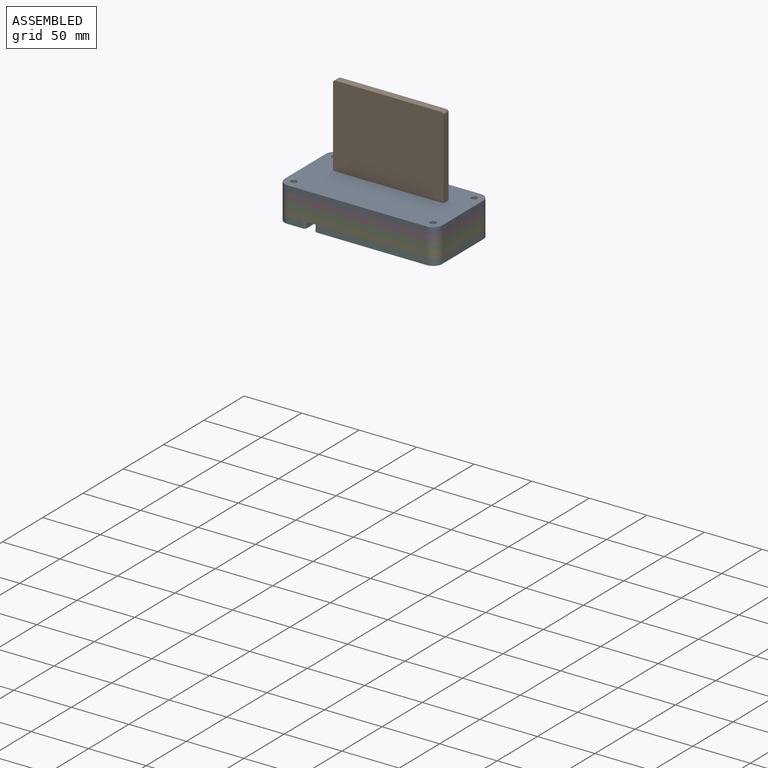
[diagram: assembled view]
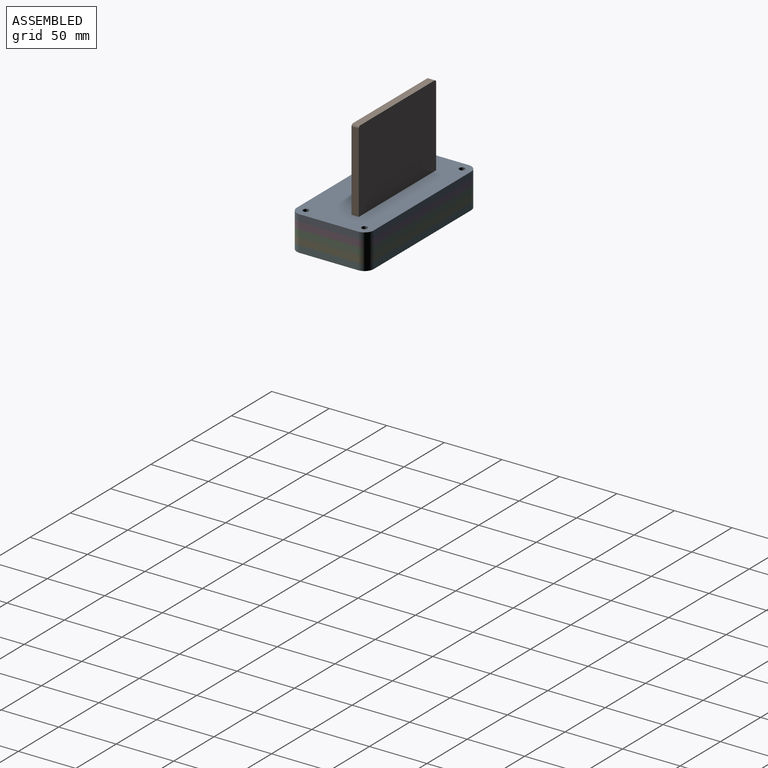
[diagram: assembled view, second angle]
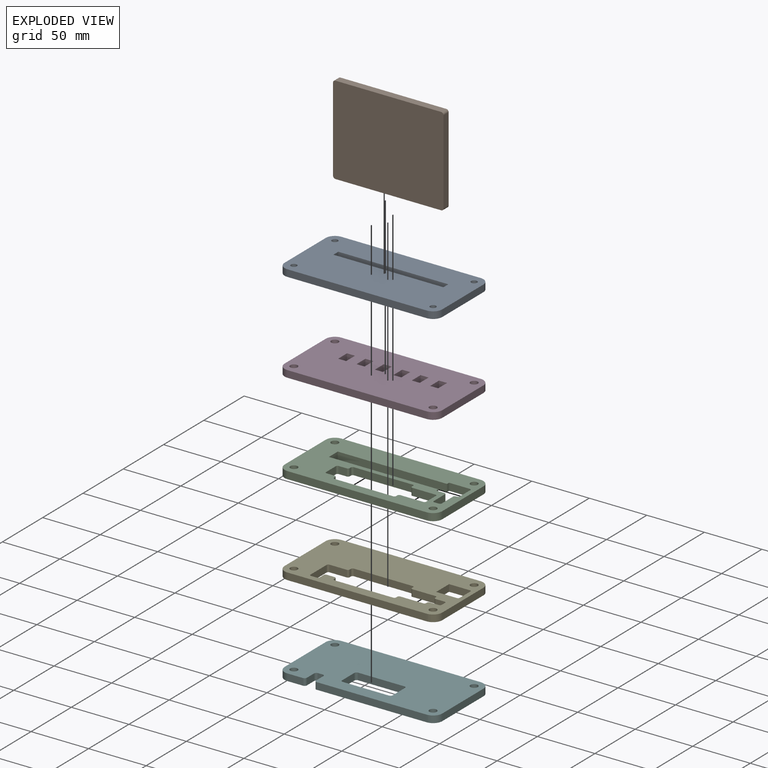
[diagram: exploded view]
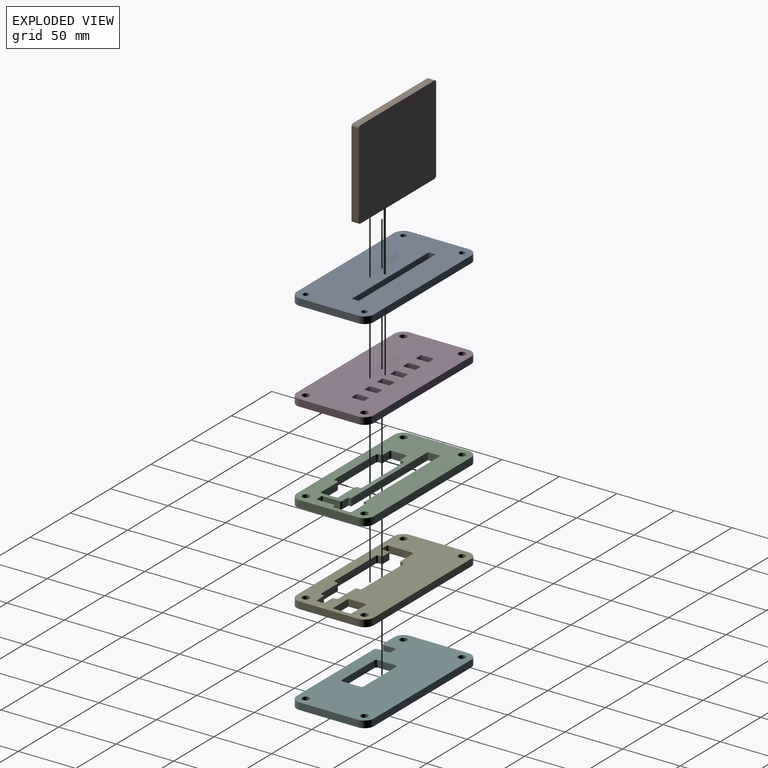
[diagram: exploded view, second angle]
ASSEMBLY  parts=6 mates=5
PART A: 18 faces, bbox 137x66.9x6 mm
  f0: plane 137x66.89mm, normal (0,0,1), area 8444mm2, adj f2,f3,f4,f5,f6,f7,f8,f9
  f1: plane 137x66.89mm, normal (0,0,-1), area 8444mm2, adj f2,f3,f4,f5,f6,f7,f8,f9
  f2: cylinder r=8mm len=8mm, axis (0,0,-1), area 75.4mm2, adj f0,f1,f3,f12
  f3: plane 121x6mm, normal (0,-1,0), area 726mm2, adj f0,f1,f2,f4
  f4: cylinder r=8mm len=8mm, axis (0,0,-1), area 75.4mm2, adj f0,f1,f3,f5
  f5: plane 50.89x6mm, normal (1,0,0), area 305.3mm2, adj f0,f1,f4,f6
  f6: cylinder r=8mm len=8mm, axis (0,0,-1), area 75.4mm2, adj f0,f1,f5,f7
  f7: plane 121x6mm, normal (0,1,0), area 726mm2, adj f0,f1,f6,f8
  f8: cylinder r=8mm len=8mm, axis (0,0,-1), area 75.4mm2, adj f0,f1,f7,f12
  f9: cylinder r=2.55mm len=6mm, axis (0,0,-1), area 96.2mm2, adj f0,f1
  f10: cylinder r=2.55mm len=6mm, axis (0,0,-1), area 96.2mm2, adj f0,f1
  f11: cylinder r=2.55mm len=6mm, axis (0,0,-1), area 96.2mm2, adj f0,f1
  f12: plane 50.89x6mm, normal (-1,0,0), area 305.3mm2, adj f0,f1,f2,f8
  f13: cylinder r=2.55mm len=6mm, axis (0,0,-1), area 96.2mm2, adj f0,f1
  f14: plane 6.1x6mm, normal (1,0,0), area 36.6mm2, adj f0,f1,f15,f16
  f15: plane 95.6x6mm, normal (0,1,0), area 573.6mm2, adj f0,f1,f14,f17
  f16: plane 95.6x6mm, normal (0,-1,0), area 573.6mm2, adj f0,f1,f14,f17
  f17: plane 6.1x6mm, normal (-1,0,0), area 36.6mm2, adj f0,f1,f15,f16
PART B: 10 faces, bbox 96x77.3x6.4 mm
  f0: plane 92x6.35mm, normal (0,1,0), area 584.2mm2, adj f4,f5,f6,f9
  f1: plane 73.25x6.35mm, normal (-1,0,0), area 465.1mm2, adj f4,f5,f6,f7
  f2: plane 92x6.35mm, normal (0,-1,0), area 584.2mm2, adj f4,f5,f7,f8
  f3: plane 73.25x6.35mm, normal (1,0,0), area 465.1mm2, adj f4,f5,f8,f9
  f4: plane 96x77.25mm, normal (0,0,1), area 7412.6mm2, adj f0,f1,f2,f3,f6,f7,f8,f9
  f5: plane 96x77.25mm, normal (0,0,-1), area 7412.6mm2, adj f0,f1,f2,f3,f6,f7,f8,f9
  f6: cylinder r=2mm len=6.35mm, axis (0,0,1), area 19.9mm2, adj f0,f1,f4,f5
  f7: cylinder r=2mm len=6.35mm, axis (0,0,-1), area 19.9mm2, adj f1,f2,f4,f5
  f8: cylinder r=2mm len=6.35mm, axis (0,0,1), area 19.9mm2, adj f2,f3,f4,f5
  f9: cylinder r=2mm len=6.35mm, axis (0,0,-1), area 19.9mm2, adj f0,f3,f4,f5
PART C: 56 faces, bbox 137x66.9x6.4 mm
  f0: plane 137x66.89mm, normal (0,0,-1), area 5718.3mm2, adj f1,f2,f3,f4,f5,f6,f7,f8
  f1: cylinder r=8mm len=8mm, axis (0,0,-1), area 79.8mm2, adj f0,f2,f11,f13
  f2: plane 121x6.35mm, normal (0,-1,0), area 768.3mm2, adj f0,f1,f3,f13
  f3: cylinder r=8mm len=8mm, axis (0,0,-1), area 79.8mm2, adj f0,f2,f4,f13
  f4: plane 50.89x6.35mm, normal (1,0,0), area 323.2mm2, adj f0,f3,f5,f13
  f5: cylinder r=8mm len=8mm, axis (0,0,-1), area 79.8mm2, adj f0,f4,f6,f13
  f6: plane 121x6.35mm, normal (0,1,0), area 768.3mm2, adj f0,f5,f7,f13
  f7: cylinder r=8mm len=8mm, axis (0,0,-1), area 79.8mm2, adj f0,f6,f11,f13
  f8: cylinder r=3.17mm len=6.35mm, axis (0,0,-1), area 126.7mm2, adj f0,f13
  f9: cylinder r=3.17mm len=6.35mm, axis (0,0,-1), area 126.7mm2, adj f0,f13
  f10: cylinder r=3.17mm len=6.35mm, axis (0,0,-1), area 126.7mm2, adj f0,f13
  f11: plane 50.89x6.35mm, normal (-1,0,0), area 323.2mm2, adj f0,f1,f7,f13
  f12: cylinder r=3.17mm len=6.35mm, axis (0,0,-1), area 126.7mm2, adj f0,f13
  f13: plane 137x66.89mm, normal (0,0,1), area 5718.3mm2, adj f1,f2,f3,f4,f5,f6,f7,f8
  f14: plane 7.25x6.35mm, normal (0,1,0), area 46mm2, adj f0,f13,f18,f53
  f15: plane 95x6.35mm, normal (0,-1,0), area 603.2mm2, adj f0,f13,f16,f22
  f16: plane 11x6.35mm, normal (1,0,0), area 69.8mm2, adj f0,f13,f15,f17
  f17: plane 95x6.35mm, normal (0,1,0), area 603.2mm2, adj f0,f13,f16,f18
  f18: plane 6.35x2.5mm, normal (1,0,0), area 15.9mm2, adj f0,f13,f14,f17
  f19: plane 6.35x0.75mm, normal (0,1,0), area 4.8mm2, adj f0,f13,f52,f54
  f20: plane 13x6.35mm, normal (-1,0,0), area 82.5mm2, adj f0,f13,f54,f55
  f21: plane 18x6.35mm, normal (0,-1,0), area 114.3mm2, adj f0,f13,f22,f55
  f22: plane 6.35x2.5mm, normal (1,0,0), area 15.9mm2, adj f0,f13,f15,f21
  f23: plane 6.35x4mm, normal (0,1,0), area 25.4mm2, adj f0,f13,f50,f51
  f24: plane 14x6.35mm, normal (-1,0,0), area 88.9mm2, adj f0,f13,f51,f52
  f25: plane 14x6.35mm, normal (1,0,0), area 88.9mm2, adj f0,f13,f50,f53
  f26: plane 6.35x1.5mm, normal (-1,0,0), area 9.5mm2, adj f0,f13,f38,f39
  f27: plane 51x6.35mm, normal (0,-1,0), area 323.8mm2, adj f0,f13,f39,f40
  f28: plane 6.35x1.5mm, normal (1,0,0), area 9.5mm2, adj f0,f13,f40,f41
  f29: plane 7x6.35mm, normal (0,-1,0), area 44.4mm2, adj f0,f13,f41,f42
  f30: plane 12x6.35mm, normal (1,0,0), area 76.2mm2, adj f0,f13,f42,f43
  f31: plane 7x6.35mm, normal (0,1,0), area 44.4mm2, adj f0,f13,f43,f44
  f32: plane 6.35x1.5mm, normal (1,0,0), area 9.5mm2, adj f0,f13,f44,f45
  f33: plane 51x6.35mm, normal (0,1,0), area 323.8mm2, adj f0,f13,f45,f46
  f34: plane 6.35x1.5mm, normal (-1,0,0), area 9.5mm2, adj f0,f13,f46,f47
  f35: plane 20x6.35mm, normal (0,1,0), area 127mm2, adj f0,f13,f47,f48
  f36: plane 20x6.35mm, normal (0,-1,0), area 127mm2, adj f0,f13,f38,f49
  f37: plane 12x6.35mm, normal (-1,0,0), area 76.2mm2, adj f0,f13,f48,f49
  f38: cylinder r=1.5mm len=6.35mm, axis (0,0,-1), area 15mm2, adj f0,f13,f26,f36
  f39: cylinder r=1.5mm len=6.35mm, axis (0,0,1), area 15mm2, adj f0,f13,f26,f27
  f40: cylinder r=1.5mm len=6.35mm, axis (0,0,-1), area 15mm2, adj f0,f13,f27,f28
  f41: cylinder r=1.5mm len=6.35mm, axis (0,0,1), area 15mm2, adj f0,f13,f28,f29
  f42: cylinder r=1.5mm len=6.35mm, axis (0,0,-1), area 15mm2, adj f0,f13,f29,f30
  f43: cylinder r=1.5mm len=6.35mm, axis (0,0,1), area 15mm2, adj f0,f13,f30,f31
  f44: cylinder r=1.5mm len=6.35mm, axis (0,0,-1), area 15mm2, adj f0,f13,f31,f32
  f45: cylinder r=1.5mm len=6.35mm, axis (0,0,1), area 15mm2, adj f0,f13,f32,f33
  f46: cylinder r=1.5mm len=6.35mm, axis (0,0,-1), area 15mm2, adj f0,f13,f33,f34
  f47: cylinder r=1.5mm len=6.35mm, axis (0,0,1), area 15mm2, adj f0,f13,f34,f35
  f48: cylinder r=1.5mm len=6.35mm, axis (0,0,-1), area 15mm2, adj f0,f13,f35,f37
  f49: cylinder r=1.5mm len=6.35mm, axis (0,0,1), area 15mm2, adj f0,f13,f36,f37
  f50: cylinder r=1.5mm len=6.35mm, axis (0,0,1), area 15mm2, adj f0,f13,f23,f25
  f51: cylinder r=1.5mm len=6.35mm, axis (0,0,-1), area 15mm2, adj f0,f13,f23,f24
  f52: cylinder r=1.5mm len=6.35mm, axis (0,0,1), area 15mm2, adj f0,f13,f19,f24
  f53: cylinder r=1.5mm len=6.35mm, axis (0,0,-1), area 15mm2, adj f0,f13,f14,f25
  f54: cylinder r=1.5mm len=6.35mm, axis (0,0,-1), area 15mm2, adj f0,f13,f19,f20
  f55: cylinder r=1.5mm len=6.35mm, axis (0,0,1), area 15mm2, adj f0,f13,f20,f21
PART D: 38 faces, bbox 137x66.9x6 mm
  f0: plane 137x66.89mm, normal (0,0,1), area 8520.4mm2, adj f2,f3,f4,f5,f6,f7,f8,f9
  f1: plane 137x66.89mm, normal (0,0,-1), area 8520.4mm2, adj f2,f3,f4,f5,f6,f7,f8,f9
  f2: cylinder r=8mm len=8mm, axis (0,0,-1), area 75.4mm2, adj f0,f1,f3,f12
  f3: plane 121x6mm, normal (0,-1,0), area 726mm2, adj f0,f1,f2,f4
  f4: cylinder r=8mm len=8mm, axis (0,0,-1), area 75.4mm2, adj f0,f1,f3,f5
  f5: plane 50.89x6mm, normal (1,0,0), area 305.3mm2, adj f0,f1,f4,f6
  f6: cylinder r=8mm len=8mm, axis (0,0,-1), area 75.4mm2, adj f0,f1,f5,f7
  f7: plane 121x6mm, normal (0,1,0), area 726mm2, adj f0,f1,f6,f8
  f8: cylinder r=8mm len=8mm, axis (0,0,-1), area 75.4mm2, adj f0,f1,f7,f12
  f9: cylinder r=3.17mm len=6.35mm, axis (0,0,-1), area 119.7mm2, adj f0,f1
  f10: cylinder r=3.17mm len=6.35mm, axis (0,0,-1), area 119.7mm2, adj f0,f1
  f11: cylinder r=3.17mm len=6.35mm, axis (0,0,-1), area 119.7mm2, adj f0,f1
  f12: plane 50.89x6mm, normal (-1,0,0), area 305.3mm2, adj f0,f1,f2,f8
  f13: cylinder r=3.17mm len=6.35mm, axis (0,0,-1), area 119.7mm2, adj f0,f1
  f14: plane 7x6mm, normal (0,1,0), area 42mm2, adj f0,f1,f15,f17
  f15: plane 11x6mm, normal (-1,0,0), area 66mm2, adj f0,f1,f14,f16
  f16: plane 7x6mm, normal (0,-1,0), area 42mm2, adj f0,f1,f15,f17
  f17: plane 11x6mm, normal (1,0,0), area 66mm2, adj f0,f1,f14,f16
  f18: plane 11x6mm, normal (1,0,0), area 66mm2, adj f0,f1,f19,f20
  f19: plane 7x6mm, normal (0,1,0), area 42mm2, adj f0,f1,f18,f21
  f20: plane 7x6mm, normal (0,-1,0), area 42mm2, adj f0,f1,f18,f21
  f21: plane 11x6mm, normal (-1,0,0), area 66mm2, adj f0,f1,f19,f20
  f22: plane 11x6mm, normal (1,0,0), area 66mm2, adj f0,f1,f23,f24
  f23: plane 7x6mm, normal (0,1,0), area 42mm2, adj f0,f1,f22,f25
  f24: plane 7x6mm, normal (0,-1,0), area 42mm2, adj f0,f1,f22,f25
  f25: plane 11x6mm, normal (-1,0,0), area 66mm2, adj f0,f1,f23,f24
  f26: plane 11x6mm, normal (1,0,0), area 66mm2, adj f0,f1,f27,f28
  f27: plane 7x6mm, normal (0,1,0), area 42mm2, adj f0,f1,f26,f29
  f28: plane 7x6mm, normal (0,-1,0), area 42mm2, adj f0,f1,f26,f29
  f29: plane 11x6mm, normal (-1,0,0), area 66mm2, adj f0,f1,f27,f28
  f30: plane 11x6mm, normal (1,0,0), area 66mm2, adj f0,f1,f31,f32
  f31: plane 7x6mm, normal (0,1,0), area 42mm2, adj f0,f1,f30,f33
  f32: plane 7x6mm, normal (0,-1,0), area 42mm2, adj f0,f1,f30,f33
  f33: plane 11x6mm, normal (-1,0,0), area 66mm2, adj f0,f1,f31,f32
  f34: plane 11x6mm, normal (1,0,0), area 66mm2, adj f0,f1,f35,f36
  f35: plane 7x6mm, normal (0,1,0), area 42mm2, adj f0,f1,f34,f37
  f36: plane 7x6mm, normal (0,-1,0), area 42mm2, adj f0,f1,f34,f37
  f37: plane 11x6mm, normal (-1,0,0), area 66mm2, adj f0,f1,f35,f36
PART E: 56 faces, bbox 137x66.9x6 mm
  f0: plane 137x66.89mm, normal (0,0,1), area 6623mm2, adj f2,f3,f4,f5,f6,f7,f8,f9
  f1: plane 137x66.89mm, normal (0,0,-1), area 6623mm2, adj f2,f3,f4,f5,f6,f7,f8,f9
  f2: cylinder r=8mm len=8mm, axis (0,0,-1), area 75.4mm2, adj f0,f1,f3,f12
  f3: plane 121x6mm, normal (0,-1,0), area 726mm2, adj f0,f1,f2,f4
  f4: cylinder r=8mm len=8mm, axis (0,0,-1), area 75.4mm2, adj f0,f1,f3,f5
  f5: plane 50.89x6mm, normal (1,0,0), area 305.3mm2, adj f0,f1,f4,f6
  f6: cylinder r=8mm len=8mm, axis (0,0,-1), area 75.4mm2, adj f0,f1,f5,f7
  f7: plane 121x6mm, normal (0,1,0), area 726mm2, adj f0,f1,f6,f8
  f8: cylinder r=8mm len=8mm, axis (0,0,-1), area 75.4mm2, adj f0,f1,f7,f12
  f9: cylinder r=3.17mm len=6.35mm, axis (0,0,-1), area 119.7mm2, adj f0,f1
  f10: cylinder r=3.17mm len=6.35mm, axis (0,0,-1), area 119.7mm2, adj f0,f1
  f11: cylinder r=3.17mm len=6.35mm, axis (0,0,-1), area 119.7mm2, adj f0,f1
  f12: plane 50.89x6mm, normal (-1,0,0), area 305.3mm2, adj f0,f1,f2,f8
  f13: cylinder r=3.17mm len=6.35mm, axis (0,0,-1), area 119.7mm2, adj f0,f1
  f14: plane 6x1.5mm, normal (-1,0,0), area 9mm2, adj f0,f1,f36,f37
  f15: plane 51x6mm, normal (0,-1,0), area 306mm2, adj f0,f1,f37,f38
  f16: plane 6x1.5mm, normal (1,0,0), area 9mm2, adj f0,f1,f38,f39
  f17: plane 15x6mm, normal (0,-1,0), area 90mm2, adj f0,f1,f39,f40
  f18: plane 20x6mm, normal (1,0,0), area 120mm2, adj f0,f1,f40,f41
  f19: plane 6x5mm, normal (0,1,0), area 30mm2, adj f0,f1,f41,f42
  f20: plane 6x5mm, normal (-1,0,0), area 30mm2, adj f0,f1,f42,f43
  f21: plane 7x6mm, normal (0,1,0), area 42mm2, adj f0,f1,f43,f44
  f22: plane 6x1.5mm, normal (1,0,0), area 9mm2, adj f0,f1,f44,f45
  f23: plane 51x6mm, normal (0,1,0), area 306mm2, adj f0,f1,f45,f46
  f24: plane 6x1.5mm, normal (-1,0,0), area 9mm2, adj f0,f1,f46,f47
  f25: plane 20x6mm, normal (0,1,0), area 120mm2, adj f0,f1,f47,f48
  f26: plane 6x1mm, normal (-1,0,0), area 6mm2, adj f0,f1,f48,f49
  f27: plane 7.75x6mm, normal (0,1,0), area 46.5mm2, adj f0,f1,f49,f50
  f28: plane 6x4mm, normal (-1,0,0), area 24mm2, adj f0,f1,f50,f51
  f29: plane 7.75x6mm, normal (0,-1,0), area 46.5mm2, adj f0,f1,f51,f52
  f30: plane 20x6mm, normal (0,-1,0), area 120mm2, adj f0,f1,f36,f53
  f31: plane 6x1mm, normal (-1,0,0), area 6mm2, adj f0,f1,f52,f53
  f32: plane 16x6mm, normal (1,0,0), area 96mm2, adj f0,f1,f33,f34
  f33: plane 18x6mm, normal (0,1,0), area 108mm2, adj f0,f1,f32,f54
  f34: plane 18x6mm, normal (0,-1,0), area 108mm2, adj f0,f1,f32,f55
  f35: plane 13x6mm, normal (-1,0,0), area 78mm2, adj f0,f1,f54,f55
  f36: cylinder r=1.5mm len=6mm, axis (0,0,-1), area 14.1mm2, adj f0,f1,f14,f30
  f37: cylinder r=1.5mm len=6mm, axis (0,0,1), area 14.1mm2, adj f0,f1,f14,f15
  f38: cylinder r=1.5mm len=6mm, axis (0,0,-1), area 14.1mm2, adj f0,f1,f15,f16
  f39: cylinder r=1.5mm len=6mm, axis (0,0,1), area 14.1mm2, adj f0,f1,f16,f17
  f40: cylinder r=1.5mm len=6mm, axis (0,0,-1), area 14.1mm2, adj f0,f1,f17,f18
  f41: cylinder r=1.5mm len=6mm, axis (0,0,1), area 14.1mm2, adj f0,f1,f18,f19
  f42: cylinder r=1.5mm len=6mm, axis (0,0,-1), area 14.1mm2, adj f0,f1,f19,f20
  f43: cylinder r=1.5mm len=6mm, axis (0,0,1), area 14.1mm2, adj f0,f1,f20,f21
  f44: cylinder r=1.5mm len=6mm, axis (0,0,-1), area 14.1mm2, adj f0,f1,f21,f22
  f45: cylinder r=1.5mm len=6mm, axis (0,0,1), area 14.1mm2, adj f0,f1,f22,f23
  f46: cylinder r=1.5mm len=6mm, axis (0,0,-1), area 14.1mm2, adj f0,f1,f23,f24
  f47: cylinder r=1.5mm len=6mm, axis (0,0,1), area 14.1mm2, adj f0,f1,f24,f25
  f48: cylinder r=1.5mm len=6mm, axis (0,0,-1), area 14.1mm2, adj f0,f1,f25,f26
  f49: cylinder r=1.5mm len=6mm, axis (0,0,1), area 14.1mm2, adj f0,f1,f26,f27
  f50: cylinder r=1.5mm len=6mm, axis (0,0,-1), area 14.1mm2, adj f0,f1,f27,f28
  f51: cylinder r=1.5mm len=6mm, axis (0,0,1), area 14.1mm2, adj f0,f1,f28,f29
  f52: cylinder r=1.5mm len=6mm, axis (0,0,-1), area 14.1mm2, adj f0,f1,f29,f31
  f53: cylinder r=1.5mm len=6mm, axis (0,0,1), area 14.1mm2, adj f0,f1,f30,f31
  f54: cylinder r=1.5mm len=6mm, axis (0,0,-1), area 14.1mm2, adj f0,f1,f33,f35
  f55: cylinder r=1.5mm len=6mm, axis (0,0,1), area 14.1mm2, adj f0,f1,f34,f35
PART F: 30 faces, bbox 137x66.9x6 mm
  f0: plane 137x66.89mm, normal (0,0,-1), area 8046.3mm2, adj f1,f2,f3,f4,f5,f6,f7,f8
  f1: plane 8.95x6mm, normal (-1,0,0), area 53.7mm2, adj f0,f16,f23,f28
  f2: plane 95.5x6mm, normal (0,-1,0), area 573mm2, adj f0,f3,f16,f28
  f3: cylinder r=8mm len=8mm, axis (0,0,-1), area 75.4mm2, adj f0,f2,f4,f16
  f4: plane 50.89x6mm, normal (1,0,0), area 305.3mm2, adj f0,f3,f5,f16
  f5: cylinder r=8mm len=8mm, axis (0,0,-1), area 75.4mm2, adj f0,f4,f6,f16
  f6: plane 121x6mm, normal (0,1,0), area 726mm2, adj f0,f5,f7,f16
  f7: cylinder r=8mm len=8mm, axis (0,0,-1), area 75.4mm2, adj f0,f6,f8,f16
  f8: plane 50.89x6mm, normal (-1,0,0), area 305.3mm2, adj f0,f7,f9,f16
  f9: cylinder r=8mm len=8mm, axis (0,0,-1), area 75.4mm2, adj f0,f8,f10,f16
  f10: plane 13.5x6mm, normal (0,-1,0), area 81mm2, adj f0,f9,f16,f29
  f11: plane 8.95x6mm, normal (1,0,0), area 53.7mm2, adj f0,f16,f22,f29
  f12: cylinder r=3.17mm len=6.35mm, axis (0,0,-1), area 119.7mm2, adj f0,f16
  f13: cylinder r=3.17mm len=6.35mm, axis (0,0,-1), area 119.7mm2, adj f0,f16
  f14: cylinder r=3.17mm len=6.35mm, axis (0,0,-1), area 119.7mm2, adj f0,f16
  f15: cylinder r=3.17mm len=6.35mm, axis (0,0,-1), area 119.7mm2, adj f0,f16
  f16: plane 137x66.89mm, normal (0,0,1), area 8046.3mm2, adj f1,f2,f3,f4,f5,f6,f7,f8
  f17: plane 6x4mm, normal (0,-1,0), area 24mm2, adj f0,f16,f22,f23
  f18: plane 15x6mm, normal (-1,0,0), area 90mm2, adj f0,f16,f24,f27
  f19: plane 40x6mm, normal (0,-1,0), area 240mm2, adj f0,f16,f24,f25
  f20: plane 15x6mm, normal (1,0,0), area 90mm2, adj f0,f16,f25,f26
  f21: plane 40x6mm, normal (0,1,0), area 240mm2, adj f0,f16,f26,f27
  f22: cylinder r=2mm len=6mm, axis (0,0,-1), area 18.8mm2, adj f0,f11,f16,f17
  f23: cylinder r=2mm len=6mm, axis (0,0,1), area 18.8mm2, adj f0,f1,f16,f17
  f24: cylinder r=2mm len=6mm, axis (0,0,1), area 18.8mm2, adj f0,f16,f18,f19
  f25: cylinder r=2mm len=6mm, axis (0,0,-1), area 18.8mm2, adj f0,f16,f19,f20
  f26: cylinder r=2mm len=6mm, axis (0,0,1), area 18.8mm2, adj f0,f16,f20,f21
  f27: cylinder r=2mm len=6mm, axis (0,0,-1), area 18.8mm2, adj f0,f16,f18,f21
  f28: cylinder r=2mm len=6mm, axis (0,0,-1), area 18.8mm2, adj f0,f1,f2,f16
  f29: cylinder r=2mm len=6mm, axis (0,0,1), area 18.8mm2, adj f0,f10,f11,f16
PLACE A t=(-85.37,-33.04,-27.89)mm
PLACE B rot(axis=(1,0,0),90deg) t=(-83.37,-35.36,49.36)mm
PLACE C t=(-85.37,-33.04,-40.24)mm
PLACE D t=(-85.37,-33.04,-33.89)mm
PLACE E t=(-85.37,-33.04,-46.24)mm
PLACE F t=(-85.37,-33.04,-52.24)mm
MATE fastened A.f1 <-> D.f0  axis (0,0,-1) through (-103.87,-47.04,-27.89)mm
MATE fastened C.f13 <-> D.f1  axis (0,0,1) through (-103.87,-47.04,-33.89)mm
MATE fastened E.f0 <-> C.f0  axis (0,0,1) through (-103.87,-47.04,-40.24)mm
MATE fastened B.f2 <-> A.f1  axis (0,0,-1) through (-35.37,-38.54,-27.89)mm
MATE fastened F.f16 <-> E.f1  axis (0,0,1) through (-103.87,-47.04,-46.24)mm
